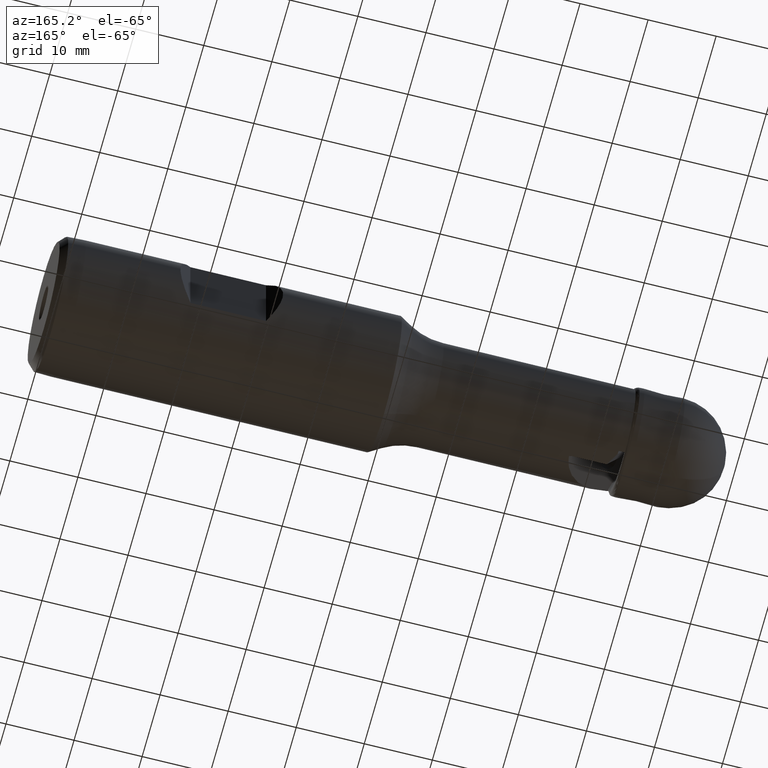
[diagram: clean part render]
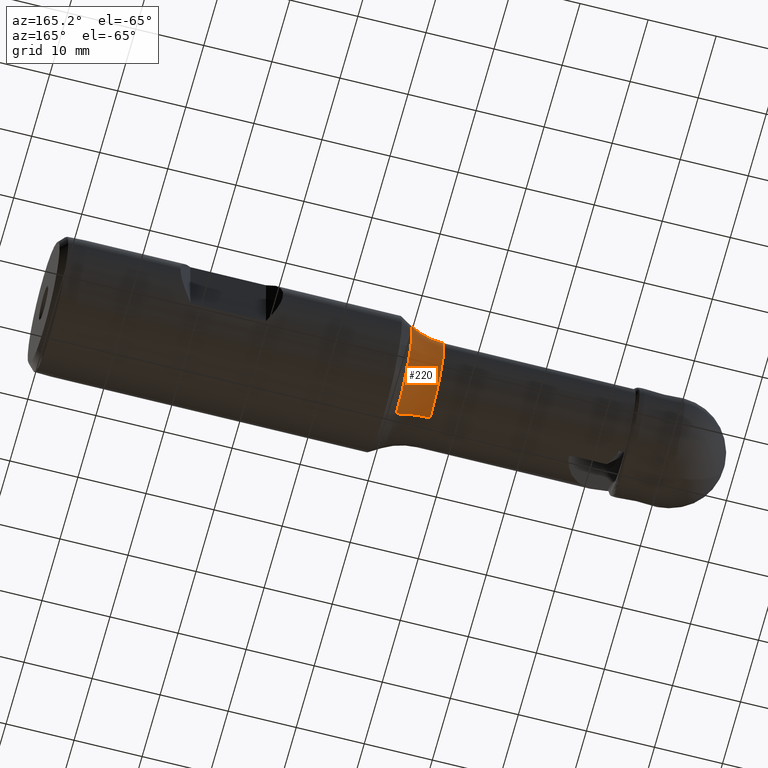
[diagram: same view with one face highlighted and labeled with its STEP entity id]
A machine part, auxiliary view. The second image highlights one B-rep face of the part: STEP entity #220.
In plain terms, the highlighted toroidal blend (fillet) surface has major radius 17.642 mm and minor (blend) radius 10 mm.
Its self-contained STEP definition (entity closure, byte-faithful):
#181 = EDGE_CURVE ( 'NONE', #3119, #1872, #2427, .T. ) ;
#188 = ORIENTED_EDGE ( 'NONE', *, *, #2029, .T. ) ;
#220 = ADVANCED_FACE ( 'NONE', ( #439 ), #1725, .F. ) ;
#439 = FACE_OUTER_BOUND ( 'NONE', #2756, .T. ) ;
#476 = DIRECTION ( 'NONE',  ( 0.0000000000000000000, 1.000000000000000000, 1.224646799147353207E-16 ) ) ;
#565 = CIRCLE ( 'NONE', #664, 7.641971863977390811 ) ;
#609 = EDGE_CURVE ( 'NONE', #1413, #1872, #2660, .T. ) ;
#664 = AXIS2_PLACEMENT_3D ( 'NONE', #3027, #763, #1758 ) ;
#702 = DIRECTION ( 'NONE',  ( 0.0000000000000000000, 0.0000000000000000000, 1.000000000000000000 ) ) ;
#763 = DIRECTION ( 'NONE',  ( -1.000000000000000000, 0.0000000000000000000, 0.0000000000000000000 ) ) ;
#827 = AXIS2_PLACEMENT_3D ( 'NONE', #3116, #1336, #2336 ) ;
#905 = ORIENTED_EDGE ( 'NONE', *, *, #3094, .F. ) ;
#1007 = AXIS2_PLACEMENT_3D ( 'NONE', #2240, #476, #2500 ) ;
#1336 = DIRECTION ( 'NONE',  ( 0.0000000000000000000, -1.000000000000000000, 0.0000000000000000000 ) ) ;
#1406 = AXIS2_PLACEMENT_3D ( 'NONE', #1683, #2968, #702 ) ;
#1413 = VERTEX_POINT ( 'NONE', #2142 ) ;
#1481 = ORIENTED_EDGE ( 'NONE', *, *, #181, .T. ) ;
#1681 = CARTESIAN_POINT ( 'NONE',  ( 48.55316572022800159, 0.0000000000000000000, -8.981717826133007065 ) ) ;
#1683 = CARTESIAN_POINT ( 'NONE',  ( 48.55316572022800159, 0.0000000000000000000, 0.0000000000000000000 ) ) ;
#1725 = TOROIDAL_SURFACE ( 'NONE', #1879, 17.64197186397738903, 9.999999999999998224 ) ;
#1747 = CARTESIAN_POINT ( 'NONE',  ( 43.55316572022799448, 0.0000000000000000000, 0.0000000000000000000 ) ) ;
#1758 = DIRECTION ( 'NONE',  ( 0.0000000000000000000, 0.0000000000000000000, 1.000000000000000000 ) ) ;
#1872 = VERTEX_POINT ( 'NONE', #1681 ) ;
#1879 = AXIS2_PLACEMENT_3D ( 'NONE', #1747, #2755, #2460 ) ;
#2029 = EDGE_CURVE ( 'NONE', #2148, #3119, #2190, .T. ) ;
#2142 = CARTESIAN_POINT ( 'NONE',  ( 43.55316572022799448, 9.358716382394043170E-16, -7.641971863977390811 ) ) ;
#2148 = VERTEX_POINT ( 'NONE', #2796 ) ;
#2190 = CIRCLE ( 'NONE', #827, 9.999999999999998224 ) ;
#2240 = CARTESIAN_POINT ( 'NONE',  ( 43.55316572022799448, 2.160518437386757574E-15, -17.64197186397738903 ) ) ;
#2316 = CARTESIAN_POINT ( 'NONE',  ( 48.55316572022800159, 1.162294998904602032E-15, 8.981717826133007065 ) ) ;
#2336 = DIRECTION ( 'NONE',  ( 0.0000000000000000000, 0.0000000000000000000, -1.000000000000000000 ) ) ;
#2427 = CIRCLE ( 'NONE', #1406, 8.981717826133007065 ) ;
#2460 = DIRECTION ( 'NONE',  ( 0.0000000000000000000, 0.0000000000000000000, 1.000000000000000000 ) ) ;
#2500 = DIRECTION ( 'NONE',  ( 0.0000000000000000000, -1.224646799147353207E-16, 1.000000000000000000 ) ) ;
#2660 = CIRCLE ( 'NONE', #1007, 9.999999999999998224 ) ;
#2749 = ORIENTED_EDGE ( 'NONE', *, *, #609, .F. ) ;
#2755 = DIRECTION ( 'NONE',  ( -1.000000000000000000, 0.0000000000000000000, 0.0000000000000000000 ) ) ;
#2756 = EDGE_LOOP ( 'NONE', ( #2749, #905, #188, #1481 ) ) ;
#2796 = CARTESIAN_POINT ( 'NONE',  ( 43.55316572022799448, 0.0000000000000000000, 7.641971863977390811 ) ) ;
#2968 = DIRECTION ( 'NONE',  ( -1.000000000000000000, 0.0000000000000000000, 0.0000000000000000000 ) ) ;
#3027 = CARTESIAN_POINT ( 'NONE',  ( 43.55316572022799448, 0.0000000000000000000, 0.0000000000000000000 ) ) ;
#3094 = EDGE_CURVE ( 'NONE', #2148, #1413, #565, .T. ) ;
#3116 = CARTESIAN_POINT ( 'NONE',  ( 43.55316572022799448, 0.0000000000000000000, 17.64197186397738903 ) ) ;
#3119 = VERTEX_POINT ( 'NONE', #2316 ) ;